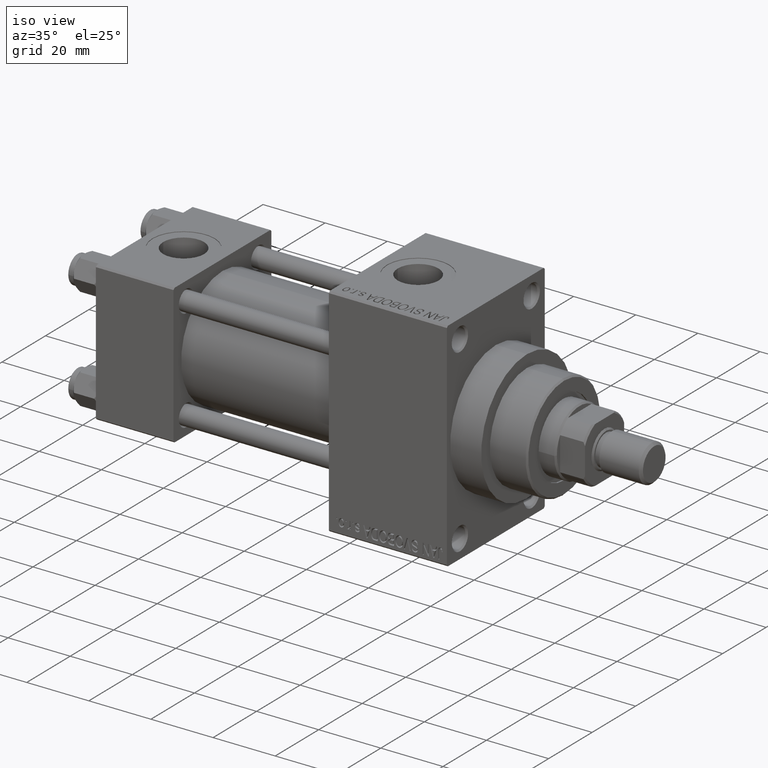
[diagram: clean part render]
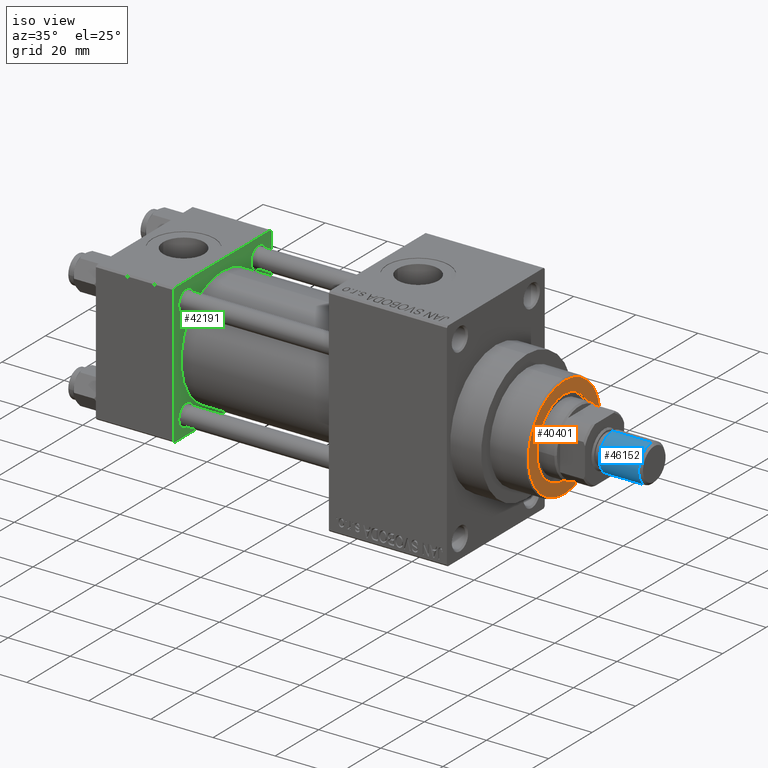
[diagram: same view with three faces highlighted in distinct colors, each labeled with its STEP entity id]
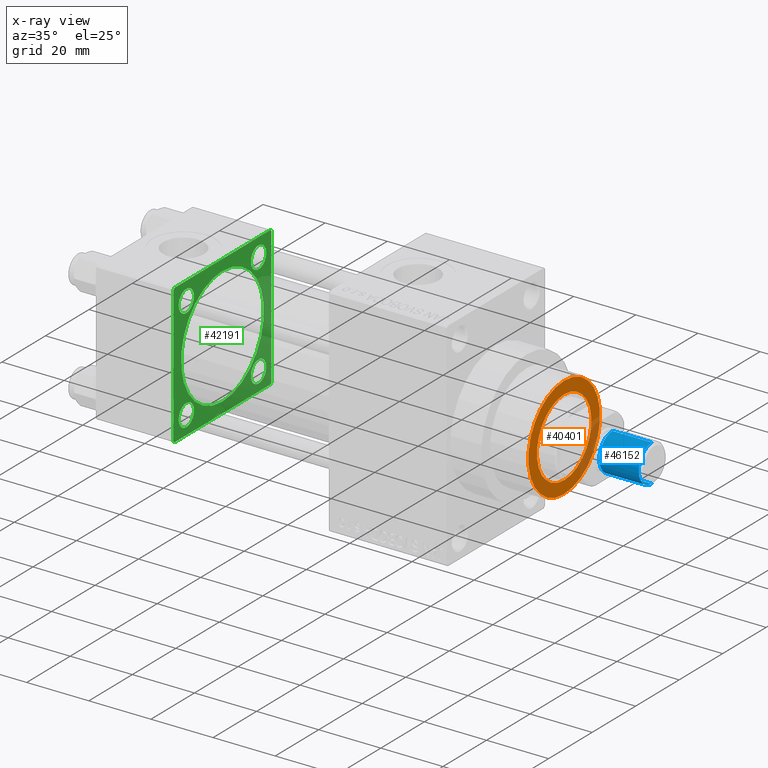
[diagram: x-ray of the same camera — body ghosted, the three highlighted faces saturated]
A machine part, iso view with three faces highlighted in distinct colors.
The next image is the same camera in x-ray (body ghosted, the three faces saturated) — at least one of them is partly hidden behind the body in this view.
Their STEP definitions:

[orange] entity #40401 — the highlighted planar face has unit normal (1, -0, -0).
#134 = FACE_BOUND ( 'NONE', #1101, .T. ) ;
#855 = DIRECTION ( 'NONE',  ( 0.000000000000000000, 0.000000000000000000, 1.000000000000000000 ) ) ;
#1097 = DIRECTION ( 'NONE',  ( 1.000000000000000000, 0.000000000000000000, -0.000000000000000000 ) ) ;
#1101 = EDGE_LOOP ( 'NONE', ( #45014, #29955 ) ) ;
#3540 = DIRECTION ( 'NONE',  ( 1.000000000000000000, 0.000000000000000000, 0.000000000000000000 ) ) ;
#7212 = ORIENTED_EDGE ( 'NONE', *, *, #26680, .T. ) ;
#8126 = AXIS2_PLACEMENT_3D ( 'NONE', #32687, #14626, #3540 ) ;
#8258 = CIRCLE ( 'NONE', #43593, 16.50000000000001421 ) ;
#10480 = DIRECTION ( 'NONE',  ( 1.000000000000000000, 0.000000000000000000, 0.000000000000000000 ) ) ;
#12599 = EDGE_CURVE ( 'NONE', #30850, #19868, #25806, .T. ) ;
#13407 = VERTEX_POINT ( 'NONE', #32665 ) ;
#14322 = CARTESIAN_POINT ( 'NONE',  ( 0.000000000000000000, 0.000000000000000000, 55.26000000000000512 ) ) ;
#14626 = DIRECTION ( 'NONE',  ( 0.000000000000000000, 0.000000000000000000, 1.000000000000000000 ) ) ;
#14842 = CARTESIAN_POINT ( 'NONE',  ( 0.000000000000000000, 0.000000000000000000, 55.26000000000000512 ) ) ;
#16845 = CARTESIAN_POINT ( 'NONE',  ( 0.000000000000000000, 0.000000000000000000, 55.26000000000000512 ) ) ;
#17958 = EDGE_CURVE ( 'NONE', #19868, #30850, #23498, .T. ) ;
#19409 = PLANE ( 'NONE',  #30950 ) ;
#19868 = VERTEX_POINT ( 'NONE', #36250 ) ;
#21349 = CARTESIAN_POINT ( 'NONE',  ( -12.50000000000000000, 1.530808498934191521E-15, 55.26000000000000512 ) ) ;
#21807 = CARTESIAN_POINT ( 'NONE',  ( 0.000000000000000000, 0.000000000000000000, 55.26000000000000512 ) ) ;
#22033 = DIRECTION ( 'NONE',  ( 1.000000000000000000, 0.000000000000000000, 0.000000000000000000 ) ) ;
#23022 = FACE_OUTER_BOUND ( 'NONE', #28600, .T. ) ;
#23498 = CIRCLE ( 'NONE', #8126, 12.50000000000000000 ) ;
#25311 = EDGE_CURVE ( 'NONE', #42359, #13407, #8258, .T. ) ;
#25806 = CIRCLE ( 'NONE', #37344, 12.50000000000000000 ) ;
#26680 = EDGE_CURVE ( 'NONE', #13407, #42359, #47485, .T. ) ;
#28600 = EDGE_LOOP ( 'NONE', ( #7212, #32935 ) ) ;
#29011 = DIRECTION ( 'NONE',  ( 0.000000000000000000, 0.000000000000000000, 1.000000000000000000 ) ) ;
#29820 = AXIS2_PLACEMENT_3D ( 'NONE', #21807, #43446, #10480 ) ;
#29955 = ORIENTED_EDGE ( 'NONE', *, *, #12599, .F. ) ;
#30850 = VERTEX_POINT ( 'NONE', #21349 ) ;
#30950 = AXIS2_PLACEMENT_3D ( 'NONE', #14842, #855, #1097 ) ;
#31069 = DIRECTION ( 'NONE',  ( 1.000000000000000000, 0.000000000000000000, 0.000000000000000000 ) ) ;
#31531 = DIRECTION ( 'NONE',  ( 0.000000000000000000, 0.000000000000000000, 1.000000000000000000 ) ) ;
#32665 = CARTESIAN_POINT ( 'NONE',  ( -16.50000000000001421, 0.000000000000000000, 55.26000000000000512 ) ) ;
#32687 = CARTESIAN_POINT ( 'NONE',  ( 0.000000000000000000, 0.000000000000000000, 55.26000000000000512 ) ) ;
#32935 = ORIENTED_EDGE ( 'NONE', *, *, #25311, .T. ) ;
#36250 = CARTESIAN_POINT ( 'NONE',  ( 12.50000000000000000, 0.000000000000000000, 55.26000000000000512 ) ) ;
#37344 = AXIS2_PLACEMENT_3D ( 'NONE', #16845, #31531, #31069 ) ;
#40401 = ADVANCED_FACE ( 'NONE', ( #134, #23022 ), #19409, .T. ) ;
#42359 = VERTEX_POINT ( 'NONE', #47050 ) ;
#43446 = DIRECTION ( 'NONE',  ( 0.000000000000000000, 0.000000000000000000, 1.000000000000000000 ) ) ;
#43593 = AXIS2_PLACEMENT_3D ( 'NONE', #14322, #29011, #22033 ) ;
#45014 = ORIENTED_EDGE ( 'NONE', *, *, #17958, .F. ) ;
#47050 = CARTESIAN_POINT ( 'NONE',  ( 16.50000000000001421, 2.051283388571817281E-15, 55.26000000000000512 ) ) ;
#47485 = CIRCLE ( 'NONE', #29820, 16.50000000000001421 ) ;

[blue] entity #46152 — the highlighted cylindrical surface (edge-blend (fillet) strip) has radius 6 mm, axis along (1, -0, -0).
#1108 = VERTEX_POINT ( 'NONE', #21703 ) ;
#3293 = CARTESIAN_POINT ( 'NONE',  ( -6.000000000000000888, 0.000000000000000000, 13.50000000000000000 ) ) ;
#3531 = ORIENTED_EDGE ( 'NONE', *, *, #32244, .F. ) ;
#4241 = FACE_OUTER_BOUND ( 'NONE', #17073, .T. ) ;
#4886 = LINE ( 'NONE', #12357, #40756 ) ;
#5228 = AXIS2_PLACEMENT_3D ( 'NONE', #15333, #27134, #33396 ) ;
#7679 = LINE ( 'NONE', #26464, #21350 ) ;
#9470 = VERTEX_POINT ( 'NONE', #3293 ) ;
#9590 = CIRCLE ( 'NONE', #26503, 6.000000000000000888 ) ;
#9691 = EDGE_CURVE ( 'NONE', #46321, #25684, #9590, .T. ) ;
#10566 = ORIENTED_EDGE ( 'NONE', *, *, #45161, .T. ) ;
#12357 = CARTESIAN_POINT ( 'NONE',  ( 6.000000000000000888, 7.347880794884120722E-16, 13.50000000000000000 ) ) ;
#15333 = CARTESIAN_POINT ( 'NONE',  ( 0.000000000000000000, 0.000000000000000000, 13.50000000000000000 ) ) ;
#16903 = ORIENTED_EDGE ( 'NONE', *, *, #23465, .F. ) ;
#17073 = EDGE_LOOP ( 'NONE', ( #3531, #16903, #10566, #24578 ) ) ;
#21350 = VECTOR ( 'NONE', #23332, 1000.000000000000000 ) ;
#21455 = CARTESIAN_POINT ( 'NONE',  ( 0.000000000000000000, 0.000000000000000000, 13.50000000000000000 ) ) ;
#21703 = CARTESIAN_POINT ( 'NONE',  ( 6.000000000000000888, 7.347880794884120722E-16, 13.50000000000000000 ) ) ;
#22452 = CARTESIAN_POINT ( 'NONE',  ( 6.000000000000000888, 7.347880794884120722E-16, 0.8000000000000055955 ) ) ;
#22506 = CARTESIAN_POINT ( 'NONE',  ( -6.000000000000000888, 0.000000000000000000, 0.8000000000000055955 ) ) ;
#23332 = DIRECTION ( 'NONE',  ( -0.000000000000000000, -0.000000000000000000, -1.000000000000000000 ) ) ;
#23465 = EDGE_CURVE ( 'NONE', #9470, #1108, #29053, .T. ) ;
#23513 = CARTESIAN_POINT ( 'NONE',  ( 0.000000000000000000, 0.000000000000000000, 0.8000000000000055955 ) ) ;
#24578 = ORIENTED_EDGE ( 'NONE', *, *, #9691, .T. ) ;
#25684 = VERTEX_POINT ( 'NONE', #22452 ) ;
#26464 = CARTESIAN_POINT ( 'NONE',  ( -6.000000000000000888, 0.000000000000000000, 13.50000000000000000 ) ) ;
#26503 = AXIS2_PLACEMENT_3D ( 'NONE', #23513, #38188, #31218 ) ;
#27050 = DIRECTION ( 'NONE',  ( -0.000000000000000000, -0.000000000000000000, -1.000000000000000000 ) ) ;
#27134 = DIRECTION ( 'NONE',  ( -0.000000000000000000, -0.000000000000000000, -1.000000000000000000 ) ) ;
#29053 = CIRCLE ( 'NONE', #45954, 6.000000000000000888 ) ;
#30747 = CYLINDRICAL_SURFACE ( 'NONE', #5228, 6.000000000000000888 ) ;
#31218 = DIRECTION ( 'NONE',  ( 1.000000000000000000, 0.000000000000000000, 0.000000000000000000 ) ) ;
#32244 = EDGE_CURVE ( 'NONE', #1108, #25684, #4886, .T. ) ;
#32278 = DIRECTION ( 'NONE',  ( 1.000000000000000000, 0.000000000000000000, 0.000000000000000000 ) ) ;
#33396 = DIRECTION ( 'NONE',  ( -1.000000000000000000, 0.000000000000000000, 0.000000000000000000 ) ) ;
#38188 = DIRECTION ( 'NONE',  ( -0.000000000000000000, -0.000000000000000000, 1.000000000000000000 ) ) ;
#39487 = DIRECTION ( 'NONE',  ( 0.000000000000000000, 0.000000000000000000, 1.000000000000000000 ) ) ;
#40756 = VECTOR ( 'NONE', #27050, 1000.000000000000000 ) ;
#45161 = EDGE_CURVE ( 'NONE', #9470, #46321, #7679, .T. ) ;
#45954 = AXIS2_PLACEMENT_3D ( 'NONE', #21455, #39487, #32278 ) ;
#46152 = ADVANCED_FACE ( 'NONE', ( #4241 ), #30747, .T. ) ;
#46321 = VERTEX_POINT ( 'NONE', #22506 ) ;

[green] entity #42191 — the highlighted planar face has unit normal (-1, 0, 0).
#284 = EDGE_LOOP ( 'NONE', ( #32139, #15978 ) ) ;
#509 = VERTEX_POINT ( 'NONE', #11986 ) ;
#1006 = DIRECTION ( 'NONE',  ( -0.000000000000000000, 0.7071067811865426878, 0.7071067811865524577 ) ) ;
#1140 = DIRECTION ( 'NONE',  ( -1.000000000000000000, 0.000000000000000000, -0.000000000000000000 ) ) ;
#1155 = VERTEX_POINT ( 'NONE', #29398 ) ;
#1232 = AXIS2_PLACEMENT_3D ( 'NONE', #9775, #42505, #39598 ) ;
#1397 = CIRCLE ( 'NONE', #37510, 3.500000000000003109 ) ;
#1658 = VERTEX_POINT ( 'NONE', #28803 ) ;
#2011 = DIRECTION ( 'NONE',  ( 0.000000000000000000, 0.000000000000000000, 1.000000000000000000 ) ) ;
#2056 = ORIENTED_EDGE ( 'NONE', *, *, #22637, .T. ) ;
#2087 = DIRECTION ( 'NONE',  ( 0.000000000000000000, -1.000000000000000000, -2.312964634635742957E-16 ) ) ;
#2241 = DIRECTION ( 'NONE',  ( -1.000000000000000000, 0.000000000000000000, -0.000000000000000000 ) ) ;
#2265 = AXIS2_PLACEMENT_3D ( 'NONE', #23193, #8972, #15725 ) ;
#2541 = CARTESIAN_POINT ( 'NONE',  ( 25.00000000000000000, -16.59999999999999076, 20.10000000000002629 ) ) ;
#2705 = CARTESIAN_POINT ( 'NONE',  ( 25.00000000000000000, 16.59999999999999787, -16.60000000000000497 ) ) ;
#2855 = ORIENTED_EDGE ( 'NONE', *, *, #19755, .F. ) ;
#2979 = AXIS2_PLACEMENT_3D ( 'NONE', #31038, #31728, #46387 ) ;
#3180 = EDGE_LOOP ( 'NONE', ( #2855, #2056, #26153, #33749, #26841, #23859, #26393, #8291 ) ) ;
#3724 = CARTESIAN_POINT ( 'NONE',  ( 25.00000000000000000, 16.59999999999999787, 20.10000000000000853 ) ) ;
#4014 = CARTESIAN_POINT ( 'NONE',  ( 25.00000000000000000, -21.99999999999997868, 22.50000000000000000 ) ) ;
#4120 = CARTESIAN_POINT ( 'NONE',  ( 25.00000000000000000, -22.50000000000000000, 22.00000000000000000 ) ) ;
#4746 = DIRECTION ( 'NONE',  ( 0.000000000000000000, 0.000000000000000000, 1.000000000000000000 ) ) ;
#4967 = FACE_BOUND ( 'NONE', #17860, .T. ) ;
#5450 = FACE_BOUND ( 'NONE', #31608, .T. ) ;
#5861 = CIRCLE ( 'NONE', #35867, 3.500000000000003109 ) ;
#6089 = DIRECTION ( 'NONE',  ( 0.000000000000000000, 0.000000000000000000, 1.000000000000000000 ) ) ;
#7169 = DIRECTION ( 'NONE',  ( -1.000000000000000000, 0.000000000000000000, -0.000000000000000000 ) ) ;
#7315 = ORIENTED_EDGE ( 'NONE', *, *, #26791, .T. ) ;
#7409 = CARTESIAN_POINT ( 'NONE',  ( 25.00000000000000000, 16.59999999999999787, 16.60000000000000497 ) ) ;
#7420 = CARTESIAN_POINT ( 'NONE',  ( 25.00000000000000000, -2.752562955852396712E-16, -19.00000000000000000 ) ) ;
#7429 = CARTESIAN_POINT ( 'NONE',  ( 25.00000000000000000, 21.99999999999999289, 22.50000000000000355 ) ) ;
#7489 = DIRECTION ( 'NONE',  ( 0.000000000000000000, 0.000000000000000000, 1.000000000000000000 ) ) ;
#7934 = CARTESIAN_POINT ( 'NONE',  ( 25.00000000000000000, -16.59999999999999076, -13.09999999999999076 ) ) ;
#8283 = EDGE_CURVE ( 'NONE', #39308, #46958, #28727, .T. ) ;
#8291 = ORIENTED_EDGE ( 'NONE', *, *, #23795, .T. ) ;
#8314 = CARTESIAN_POINT ( 'NONE',  ( 25.00000000000000000, -16.59999999999999076, -16.60000000000000853 ) ) ;
#8416 = LINE ( 'NONE', #15400, #38810 ) ;
#8434 = CIRCLE ( 'NONE', #2265, 19.00000000000000000 ) ;
#8707 = ORIENTED_EDGE ( 'NONE', *, *, #8283, .F. ) ;
#8846 = CARTESIAN_POINT ( 'NONE',  ( 25.00000000000000000, 22.50000000000000000, -22.49999999999999645 ) ) ;
#8972 = DIRECTION ( 'NONE',  ( 1.000000000000000000, -0.000000000000000000, 0.000000000000000000 ) ) ;
#9056 = AXIS2_PLACEMENT_3D ( 'NONE', #12336, #37856, #15954 ) ;
#9331 = CIRCLE ( 'NONE', #26265, 3.500000000000020428 ) ;
#9400 = DIRECTION ( 'NONE',  ( 0.000000000000000000, 0.000000000000000000, 1.000000000000000000 ) ) ;
#9775 = CARTESIAN_POINT ( 'NONE',  ( 25.00000000000000000, 0.000000000000000000, 0.000000000000000000 ) ) ;
#10590 = VECTOR ( 'NONE', #18255, 1000.000000000000000 ) ;
#11986 = CARTESIAN_POINT ( 'NONE',  ( 25.00000000000000000, -22.50000000000000000, -21.99999999999997158 ) ) ;
#12032 = VERTEX_POINT ( 'NONE', #2541 ) ;
#12336 = CARTESIAN_POINT ( 'NONE',  ( 25.00000000000000000, 16.59999999999999787, -16.60000000000000497 ) ) ;
#12415 = VECTOR ( 'NONE', #16442, 999.9999999999998863 ) ;
#14013 = EDGE_LOOP ( 'NONE', ( #43472, #7315 ) ) ;
#14074 = LINE ( 'NONE', #43423, #32175 ) ;
#15048 = VERTEX_POINT ( 'NONE', #40018 ) ;
#15317 = CARTESIAN_POINT ( 'NONE',  ( 25.00000000000000000, 16.59999999999999787, -13.10000000000000142 ) ) ;
#15400 = CARTESIAN_POINT ( 'NONE',  ( 25.00000000000000000, 22.50000000000000000, 22.50000000000000355 ) ) ;
#15441 = EDGE_CURVE ( 'NONE', #35987, #18696, #8416, .T. ) ;
#15725 = DIRECTION ( 'NONE',  ( 0.000000000000000000, 0.000000000000000000, 1.000000000000000000 ) ) ;
#15954 = DIRECTION ( 'NONE',  ( 0.000000000000000000, 0.000000000000000000, 1.000000000000000000 ) ) ;
#15978 = ORIENTED_EDGE ( 'NONE', *, *, #29595, .T. ) ;
#16442 = DIRECTION ( 'NONE',  ( -0.000000000000000000, -0.7071067811865525687, -0.7071067811865425767 ) ) ;
#17860 = EDGE_LOOP ( 'NONE', ( #31206, #18570 ) ) ;
#18255 = DIRECTION ( 'NONE',  ( 0.000000000000000000, 0.7071067811865426878, -0.7071067811865524577 ) ) ;
#18570 = ORIENTED_EDGE ( 'NONE', *, *, #34398, .T. ) ;
#18696 = VERTEX_POINT ( 'NONE', #4014 ) ;
#19417 = VERTEX_POINT ( 'NONE', #38506 ) ;
#19673 = FACE_OUTER_BOUND ( 'NONE', #3180, .T. ) ;
#19755 = EDGE_CURVE ( 'NONE', #1155, #1658, #45185, .T. ) ;
#20711 = CARTESIAN_POINT ( 'NONE',  ( 25.00000000000000000, -2.602085213965210642E-15, 0.000000000000000000 ) ) ;
#20984 = CARTESIAN_POINT ( 'NONE',  ( 25.00000000000000000, -22.50000000000000000, 22.00000000000000000 ) ) ;
#21420 = DIRECTION ( 'NONE',  ( 0.000000000000000000, -0.7071067811865474617, 0.7071067811865474617 ) ) ;
#22018 = EDGE_LOOP ( 'NONE', ( #32259, #8707 ) ) ;
#22118 = CARTESIAN_POINT ( 'NONE',  ( 25.00000000000000000, -21.99999999999998579, -22.50000000000000711 ) ) ;
#22129 = CIRCLE ( 'NONE', #9056, 3.500000000000003109 ) ;
#22197 = DIRECTION ( 'NONE',  ( -1.000000000000000000, 0.000000000000000000, -0.000000000000000000 ) ) ;
#22637 = EDGE_CURVE ( 'NONE', #1155, #40901, #41200, .T. ) ;
#22909 = VERTEX_POINT ( 'NONE', #7934 ) ;
#23008 = DIRECTION ( 'NONE',  ( -1.000000000000000000, 0.000000000000000000, -0.000000000000000000 ) ) ;
#23193 = CARTESIAN_POINT ( 'NONE',  ( 25.00000000000000000, -2.602085213965210642E-15, 0.000000000000000000 ) ) ;
#23795 = EDGE_CURVE ( 'NONE', #509, #1658, #36310, .T. ) ;
#23800 = EDGE_CURVE ( 'NONE', #36581, #29596, #1397, .T. ) ;
#23859 = ORIENTED_EDGE ( 'NONE', *, *, #35185, .T. ) ;
#24426 = EDGE_CURVE ( 'NONE', #46116, #40901, #14074, .T. ) ;
#25086 = CIRCLE ( 'NONE', #31994, 3.500000000000020428 ) ;
#25979 = LINE ( 'NONE', #7429, #27681 ) ;
#26070 = CIRCLE ( 'NONE', #2979, 3.500000000000016875 ) ;
#26153 = ORIENTED_EDGE ( 'NONE', *, *, #24426, .F. ) ;
#26265 = AXIS2_PLACEMENT_3D ( 'NONE', #31012, #1140, #4746 ) ;
#26393 = ORIENTED_EDGE ( 'NONE', *, *, #41813, .T. ) ;
#26440 = AXIS2_PLACEMENT_3D ( 'NONE', #20711, #28155, #9400 ) ;
#26791 = EDGE_CURVE ( 'NONE', #44510, #19417, #22129, .T. ) ;
#26841 = ORIENTED_EDGE ( 'NONE', *, *, #15441, .T. ) ;
#27681 = VECTOR ( 'NONE', #21420, 1000.000000000000114 ) ;
#28155 = DIRECTION ( 'NONE',  ( 1.000000000000000000, -0.000000000000000000, 0.000000000000000000 ) ) ;
#28190 = VECTOR ( 'NONE', #2087, 1000.000000000000000 ) ;
#28252 = VECTOR ( 'NONE', #1006, 1000.000000000000000 ) ;
#28727 = CIRCLE ( 'NONE', #26440, 19.00000000000000000 ) ;
#28803 = CARTESIAN_POINT ( 'NONE',  ( 25.00000000000000000, -21.99999999999997158, -22.50000000000000711 ) ) ;
#29398 = CARTESIAN_POINT ( 'NONE',  ( 25.00000000000000000, 21.99999999999999289, -22.49999999999999645 ) ) ;
#29575 = CARTESIAN_POINT ( 'NONE',  ( 25.00000000000000000, -2.602085213965210642E-15, 19.00000000000000000 ) ) ;
#29595 = EDGE_CURVE ( 'NONE', #22909, #15048, #26070, .T. ) ;
#29596 = VERTEX_POINT ( 'NONE', #46856 ) ;
#30407 = EDGE_CURVE ( 'NONE', #46958, #39308, #8434, .T. ) ;
#31012 = CARTESIAN_POINT ( 'NONE',  ( 25.00000000000000000, -16.59999999999999076, 16.60000000000000853 ) ) ;
#31022 = CARTESIAN_POINT ( 'NONE',  ( 25.00000000000000000, -16.59999999999999076, 13.09999999999998721 ) ) ;
#31038 = CARTESIAN_POINT ( 'NONE',  ( 25.00000000000000000, -16.59999999999999076, -16.60000000000000853 ) ) ;
#31206 = ORIENTED_EDGE ( 'NONE', *, *, #41714, .T. ) ;
#31608 = EDGE_LOOP ( 'NONE', ( #37464, #32080 ) ) ;
#31728 = DIRECTION ( 'NONE',  ( -1.000000000000000000, 0.000000000000000000, -0.000000000000000000 ) ) ;
#31808 = EDGE_CURVE ( 'NONE', #46116, #35987, #25979, .T. ) ;
#31994 = AXIS2_PLACEMENT_3D ( 'NONE', #35004, #2241, #2011 ) ;
#32080 = ORIENTED_EDGE ( 'NONE', *, *, #23800, .T. ) ;
#32139 = ORIENTED_EDGE ( 'NONE', *, *, #38871, .T. ) ;
#32175 = VECTOR ( 'NONE', #47273, 1000.000000000000000 ) ;
#32259 = ORIENTED_EDGE ( 'NONE', *, *, #30407, .F. ) ;
#32626 = EDGE_CURVE ( 'NONE', #29596, #36581, #40789, .T. ) ;
#33205 = CIRCLE ( 'NONE', #37805, 3.500000000000016875 ) ;
#33260 = CARTESIAN_POINT ( 'NONE',  ( 25.00000000000000000, 16.59999999999999787, 16.60000000000000497 ) ) ;
#33695 = LINE ( 'NONE', #47228, #42000 ) ;
#33749 = ORIENTED_EDGE ( 'NONE', *, *, #31808, .T. ) ;
#34398 = EDGE_CURVE ( 'NONE', #12032, #35436, #9331, .T. ) ;
#34742 = LINE ( 'NONE', #20984, #12415 ) ;
#34838 = FACE_BOUND ( 'NONE', #22018, .T. ) ;
#34893 = CARTESIAN_POINT ( 'NONE',  ( 25.00000000000000000, 21.99999999999999289, 22.50000000000000355 ) ) ;
#35004 = CARTESIAN_POINT ( 'NONE',  ( 25.00000000000000000, -16.59999999999999076, 16.60000000000000853 ) ) ;
#35185 = EDGE_CURVE ( 'NONE', #18696, #35694, #34742, .T. ) ;
#35436 = VERTEX_POINT ( 'NONE', #31022 ) ;
#35475 = DIRECTION ( 'NONE',  ( -1.000000000000000000, 0.000000000000000000, -0.000000000000000000 ) ) ;
#35694 = VERTEX_POINT ( 'NONE', #4120 ) ;
#35867 = AXIS2_PLACEMENT_3D ( 'NONE', #2705, #35475, #6089 ) ;
#35987 = VERTEX_POINT ( 'NONE', #34893 ) ;
#36310 = LINE ( 'NONE', #22118, #10590 ) ;
#36581 = VERTEX_POINT ( 'NONE', #3724 ) ;
#36953 = AXIS2_PLACEMENT_3D ( 'NONE', #33260, #22197, #7489 ) ;
#37068 = DIRECTION ( 'NONE',  ( 0.000000000000000000, -1.000000000000000000, -7.709882115452476934E-17 ) ) ;
#37464 = ORIENTED_EDGE ( 'NONE', *, *, #32626, .T. ) ;
#37510 = AXIS2_PLACEMENT_3D ( 'NONE', #7409, #7169, #47365 ) ;
#37681 = DIRECTION ( 'NONE',  ( 0.000000000000000000, 0.000000000000000000, 1.000000000000000000 ) ) ;
#37805 = AXIS2_PLACEMENT_3D ( 'NONE', #8314, #23008, #37681 ) ;
#37856 = DIRECTION ( 'NONE',  ( -1.000000000000000000, 0.000000000000000000, -0.000000000000000000 ) ) ;
#37954 = CARTESIAN_POINT ( 'NONE',  ( 25.00000000000000000, 22.50000000000000000, 21.99999999999999645 ) ) ;
#38051 = CARTESIAN_POINT ( 'NONE',  ( 25.00000000000000000, 22.50000000000000000, -21.99999999999996803 ) ) ;
#38436 = FACE_BOUND ( 'NONE', #14013, .T. ) ;
#38506 = CARTESIAN_POINT ( 'NONE',  ( 25.00000000000000000, 16.59999999999999787, -20.10000000000000853 ) ) ;
#38671 = PLANE ( 'NONE',  #1232 ) ;
#38810 = VECTOR ( 'NONE', #37068, 1000.000000000000000 ) ;
#38871 = EDGE_CURVE ( 'NONE', #15048, #22909, #33205, .T. ) ;
#39308 = VERTEX_POINT ( 'NONE', #7420 ) ;
#39598 = DIRECTION ( 'NONE',  ( -0.000000000000000000, 0.000000000000000000, 1.000000000000000000 ) ) ;
#40018 = CARTESIAN_POINT ( 'NONE',  ( 25.00000000000000000, -16.59999999999999076, -20.10000000000002274 ) ) ;
#40022 = DIRECTION ( 'NONE',  ( 0.000000000000000000, 0.000000000000000000, -1.000000000000000000 ) ) ;
#40789 = CIRCLE ( 'NONE', #36953, 3.500000000000003109 ) ;
#40901 = VERTEX_POINT ( 'NONE', #38051 ) ;
#41200 = LINE ( 'NONE', #45290, #28252 ) ;
#41561 = FACE_BOUND ( 'NONE', #284, .T. ) ;
#41714 = EDGE_CURVE ( 'NONE', #35436, #12032, #25086, .T. ) ;
#41813 = EDGE_CURVE ( 'NONE', #35694, #509, #33695, .T. ) ;
#42000 = VECTOR ( 'NONE', #40022, 1000.000000000000000 ) ;
#42191 = ADVANCED_FACE ( 'NONE', ( #41561, #38436, #4967, #5450, #34838, #19673 ), #38671, .F. ) ;
#42505 = DIRECTION ( 'NONE',  ( -1.000000000000000000, 0.000000000000000000, -0.000000000000000000 ) ) ;
#43349 = EDGE_CURVE ( 'NONE', #19417, #44510, #5861, .T. ) ;
#43423 = CARTESIAN_POINT ( 'NONE',  ( 25.00000000000000000, 22.50000000000000000, 22.50000000000000355 ) ) ;
#43472 = ORIENTED_EDGE ( 'NONE', *, *, #43349, .T. ) ;
#44510 = VERTEX_POINT ( 'NONE', #15317 ) ;
#45185 = LINE ( 'NONE', #8846, #28190 ) ;
#45290 = CARTESIAN_POINT ( 'NONE',  ( 25.00000000000000000, 22.50000000000000000, -21.99999999999998224 ) ) ;
#46116 = VERTEX_POINT ( 'NONE', #37954 ) ;
#46387 = DIRECTION ( 'NONE',  ( 0.000000000000000000, 0.000000000000000000, 1.000000000000000000 ) ) ;
#46856 = CARTESIAN_POINT ( 'NONE',  ( 25.00000000000000000, 16.59999999999999787, 13.10000000000000142 ) ) ;
#46958 = VERTEX_POINT ( 'NONE', #29575 ) ;
#47228 = CARTESIAN_POINT ( 'NONE',  ( 25.00000000000000000, -22.50000000000000000, 22.50000000000000000 ) ) ;
#47273 = DIRECTION ( 'NONE',  ( 0.000000000000000000, 0.000000000000000000, -1.000000000000000000 ) ) ;
#47365 = DIRECTION ( 'NONE',  ( 0.000000000000000000, 0.000000000000000000, 1.000000000000000000 ) ) ;